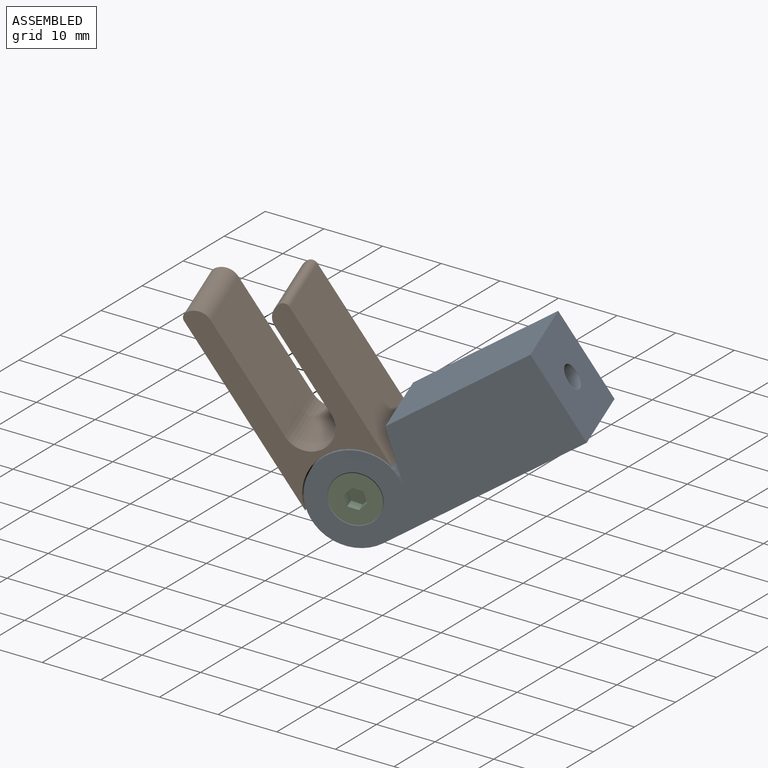
[diagram: assembled view]
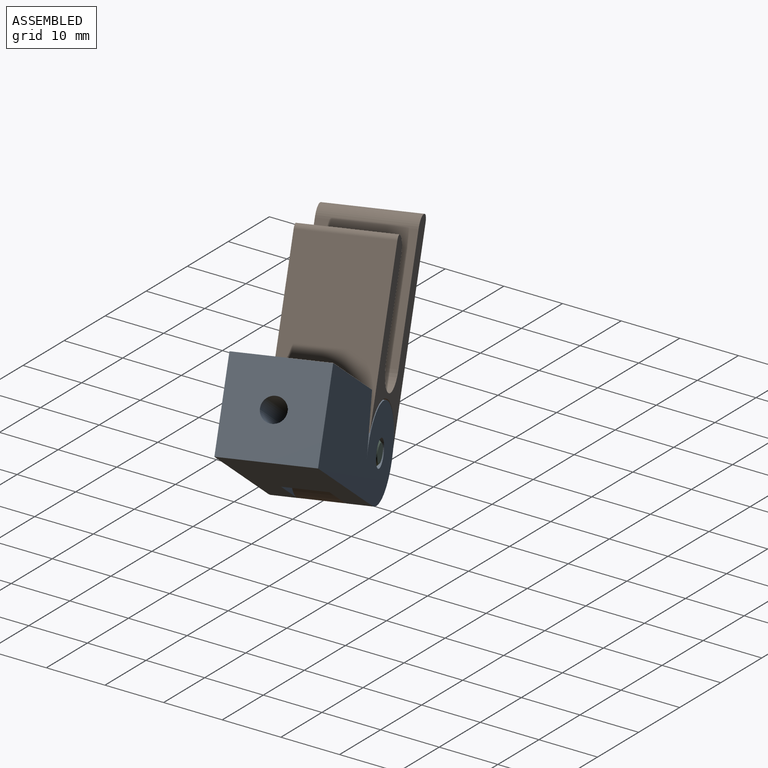
[diagram: assembled view, second angle]
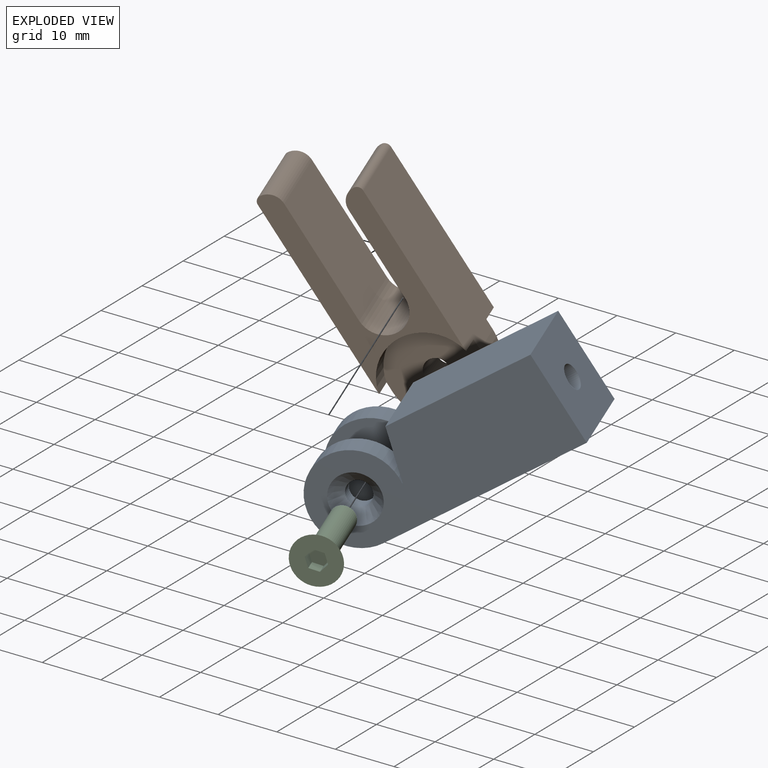
[diagram: exploded view]
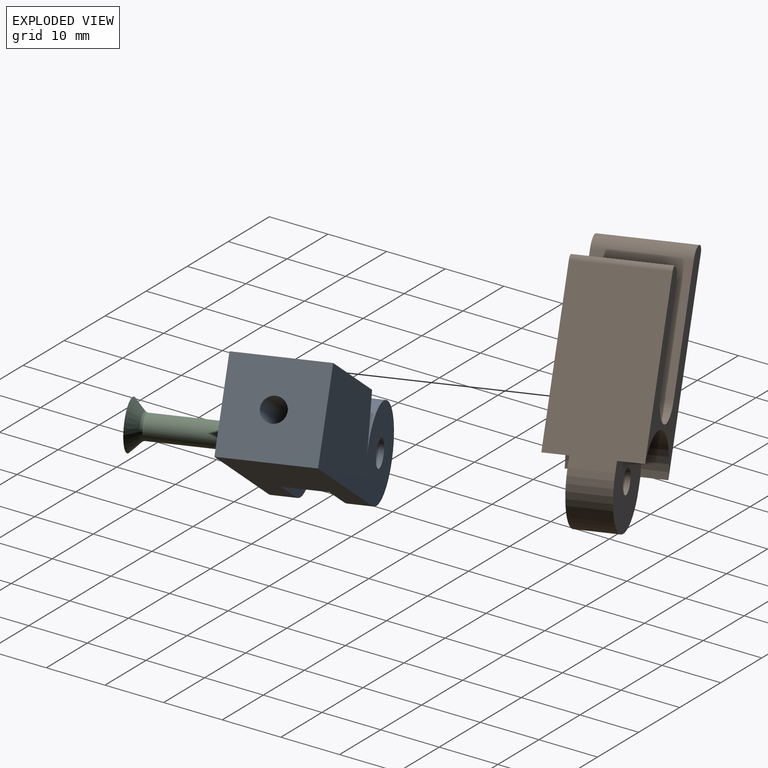
[diagram: exploded view, second angle]
ASSEMBLY  parts=3 mates=2
PART A: 18 faces, bbox 42.5x15x15 mm
  f0: plane 15x7mm, normal (1,0,0), area 67.6mm2, adj f1,f3,f8,f11,f15
  f1: plane 25x15mm, normal (0,0,1), area 375mm2, adj f0,f2,f4,f5,f10,f14
  f2: plane 15x15mm, normal (-1,0,0), area 212.4mm2, adj f1,f3,f4,f5,f6
  f3: plane 35x15mm, normal (0,0,-1), area 455mm2, adj f0,f2,f4,f5,f9,f11,f13,f15
  f4: plane 42.5x15mm, normal (0,-1,0), area 575.3mm2, adj f1,f2,f3,f9,f10,f12
  f5: plane 42.5x15mm, normal (0,1,0), area 537.7mm2, adj f1,f2,f3,f13,f14,f17
  f6: cylinder r=2mm len=21mm, axis (1,0,0), area 263.9mm2, adj f2,f7
  f7: plane 6.9x6.9mm, normal (1,0,0), area 24.8mm2, adj f6,f8
  f8: cylinder r=3.45mm len=6.9mm, axis (1,0,0), area 86.7mm2, adj f0,f7
  f9: cylinder r=7.5mm len=15mm, axis (0,-1,0), area 149.9mm2, adj f3,f4,f10,f11
  f10: plane 9.6x4mm, normal (0.96,0,0.28), area 40mm2, adj f1,f4,f9,f11
  f11: plane 17.5x15mm, normal (0,1,0), area 200.3mm2, adj f0,f3,f9,f10,f12
  f12: cylinder r=2.2mm len=4.4mm, axis (0,1,0), area 55.3mm2, adj f4,f11
  f13: cylinder r=7.5mm len=15mm, axis (0,1,0), area 149.9mm2, adj f3,f5,f14,f15
  f14: plane 9.6x4mm, normal (0.96,0,0.28), area 40mm2, adj f1,f5,f13,f15
  f15: plane 17.5x15mm, normal (0,-1,0), area 202.3mm2, adj f0,f3,f13,f14,f16
  f16: cylinder r=2.05mm len=4.1mm, axis (0,1,0), area 25.1mm2, adj f15,f17
  f17: cone r=2.05mm half-angle=45deg, axis (0,1,0), area 56mm2, adj f5,f16
PART B: 17 faces, bbox 15x15x42.5 mm
  f0: cylinder r=7.7mm len=15mm, axis (0,1,0), area 83.7mm2, adj f1,f3,f12,f15
  f1: plane 34x15mm, normal (-1,0,0), area 495.9mm2, adj f0,f2,f10,f11,f12,f13,f14,f15
  f2: cylinder r=7.7mm len=15mm, axis (0,1,0), area 83.7mm2, adj f1,f3,f11,f14
  f3: plane 29.1x15mm, normal (1,0,0), area 422.3mm2, adj f0,f2,f4,f11,f12,f13,f14,f15
  f4: cylinder r=1mm len=15mm, axis (0,1,0), area 23.6mm2, adj f3,f5,f11,f12
  f5: cylinder r=2.55mm len=15mm, axis (0,1,0), area 60.1mm2, adj f4,f6,f11,f12
  f6: plane 15.05x15mm, normal (-1,0,0), area 225.7mm2, adj f5,f7,f11,f12
  f7: cylinder r=3.95mm len=15mm, axis (0,1,0), area 186.1mm2, adj f6,f8,f11,f12
  f8: plane 19.95x15mm, normal (1,0,0), area 299.2mm2, adj f7,f9,f11,f12
  f9: cylinder r=2.55mm len=15mm, axis (0,1,0), area 60.1mm2, adj f8,f10,f11,f12
  f10: cylinder r=1mm len=15mm, axis (0,1,0), area 23.6mm2, adj f1,f9,f11,f12
  f11: plane 33.26x15mm, normal (0,-1,0), area 209.4mm2, adj f1,f2,f3,f4,f5,f6,f7,f8
  f12: plane 33.26x15mm, normal (0,1,0), area 209.4mm2, adj f0,f1,f3,f4,f5,f6,f7,f8
  f13: cylinder r=7.5mm len=15mm, axis (0,1,0), area 162.6mm2, adj f1,f3,f14,f15
  f14: plane 15.2x15mm, normal (0,-1,0), area 168.4mm2, adj f1,f2,f3,f13,f16
  f15: plane 15.2x15mm, normal (0,1,0), area 168.4mm2, adj f0,f1,f3,f13,f16
  f16: cylinder r=2mm len=6.9mm, axis (0,-1,0), area 86.7mm2, adj f14,f15
PART C: 13 faces, bbox 8x15x8 mm
  f0: plane 8x8mm, normal (0,1,0), area 42.5mm2, adj f1,f6,f7,f8,f9,f10,f11
  f1: cone r=2mm half-angle=45deg, axis (0,1,0), area 50.6mm2, adj f0,f4
  f2: cylinder r=2mm len=12.29mm, axis (0,1,0), area 154.5mm2, adj f4,f5
  f3: plane 3x3mm, normal (0,-1,0), area 7.1mm2, adj f5
  f4: cone r=2.15mm half-angle=22.5deg, axis (0,1,0), area 5mm2, adj f1,f2
  f5: cone r=2mm half-angle=45deg, axis (0,1,0), area 7.8mm2, adj f2,f3
  f6: plane 2x1.25mm, normal (0.72,0,-0.7), area 3.5mm2, adj f0,f7,f11,f12
  f7: plane 2x1.68mm, normal (-0.24,0,-0.97), area 3.5mm2, adj f0,f6,f8,f12
  f8: plane 2x1.67mm, normal (-0.96,0,-0.27), area 3.5mm2, adj f0,f7,f9,f12
  f9: plane 2x1.25mm, normal (-0.72,0,0.7), area 3.5mm2, adj f0,f8,f10,f12
  f10: plane 2x1.68mm, normal (0.24,0,0.97), area 3.5mm2, adj f0,f9,f11,f12
  f11: plane 2x1.67mm, normal (0.96,0,0.27), area 3.5mm2, adj f0,f6,f10,f12
  f12: plane 3.36x3.34mm, normal (0,1,0), area 7.8mm2, adj f6,f7,f8,f9,f10,f11
PLACE A rot(axis=(0.28,0.05,-0.96),160.8deg) t=(-39.21,35.09,-43.05)mm
PLACE B rot(axis=(0.15,-0.85,0.51),38.4deg) t=(-17.01,51.1,-15.04)mm
PLACE C rot(axis=(0.28,0.05,-0.96),160.8deg) t=(-36.55,78.38,-1.08)mm
MATE revolute C.f1 <-> A.f9  axis (0.34,-0.94,0) through (-14.46,44.1,-15.04)mm
MATE revolute B.f13 <-> A.f9  axis (0.34,-0.94,0) through (-15.83,47.86,-15.04)mm
